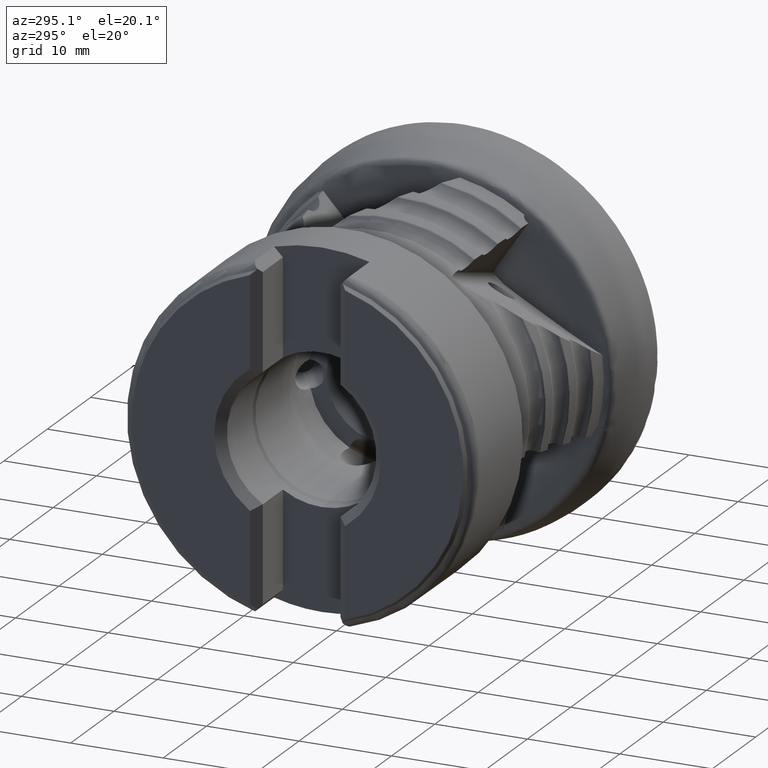
[diagram: clean part render]
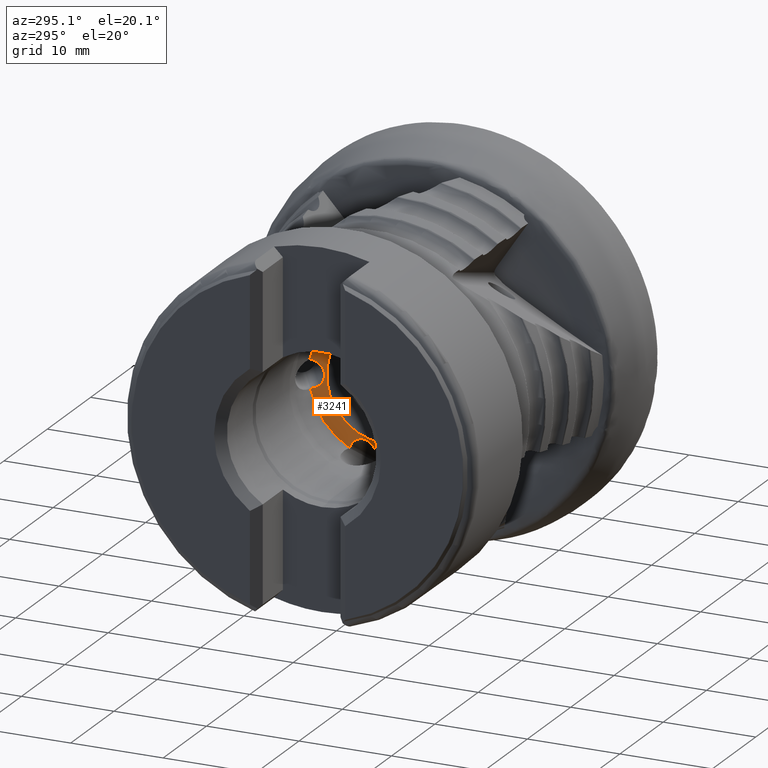
[diagram: same view with one face highlighted and labeled with its STEP entity id]
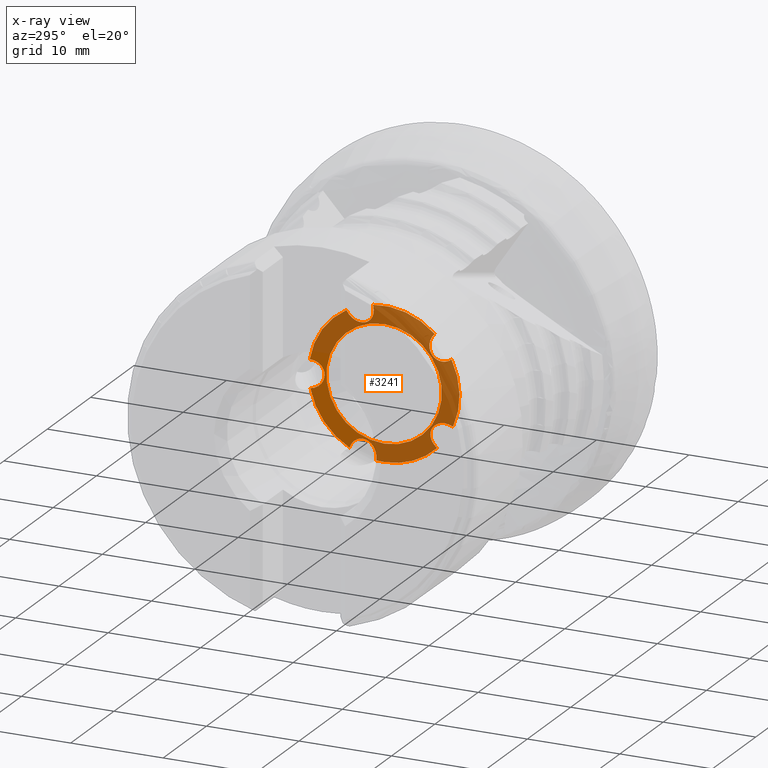
[diagram: x-ray of the same camera — body ghosted, the highlighted face saturated]
A machine part, auxiliary view. The second image highlights one B-rep face of the part: STEP entity #3241.
The next image is the same camera in x-ray: the body ghosted, the highlighted face saturated — about 75% of this face is hidden behind the body in this view.
In plain terms, the highlighted planar face has unit normal (1, 0, -0).
Its self-contained STEP definition (entity closure, byte-faithful):
#352 = CARTESIAN_POINT ( 'NONE',  ( -19.00000000000000000, 0.0000000000000000000, 0.0000000000000000000 ) ) ;
#395 = VERTEX_POINT ( 'NONE', #8286 ) ;
#417 = FACE_OUTER_BOUND ( 'NONE', #4820, .T. ) ;
#427 = DIRECTION ( 'NONE',  ( 1.000000000000000000, -0.0000000000000000000, -0.0000000000000000000 ) ) ;
#543 =( BOUNDED_CURVE ( )  B_SPLINE_CURVE ( 3, ( #5584, #2654, #1201, #3258 ),
 .UNSPECIFIED., .F., .F. ) 
 B_SPLINE_CURVE_WITH_KNOTS ( ( 4, 4 ),
 ( 4.541438790713554500, 7.518113631060419500 ),
 .UNSPECIFIED. ) 
 CURVE ( )  GEOMETRIC_REPRESENTATION_ITEM ( )  RATIONAL_B_SPLINE_CURVE ( ( 1.000000000000000000, 0.3882436614828691500, 0.3882436614828691500, 1.000000000000000000 ) ) 
 REPRESENTATION_ITEM ( '' )  );
#685 = CARTESIAN_POINT ( 'NONE',  ( -19.00000000000000000, 8.042195829869292800, 1.321206355582983600 ) ) ;
#694 = ORIENTED_EDGE ( 'NONE', *, *, #6602, .T. ) ;
#766 = AXIS2_PLACEMENT_3D ( 'NONE', #4334, #2749, #2711 ) ;
#918 = DIRECTION ( 'NONE',  ( 0.0000000000000000000, 0.0000000000000000000, -1.000000000000000000 ) ) ;
#981 = CARTESIAN_POINT ( 'NONE',  ( -19.00000000000000000, 0.0000000000000000000, -6.232050807568852800 ) ) ;
#1201 = CARTESIAN_POINT ( 'NONE',  ( -19.00000000000000000, 5.119280253755688300, 1.381342129187945500 ) ) ;
#1395 = ORIENTED_EDGE ( 'NONE', *, *, #2384, .F. ) ;
#1882 = AXIS2_PLACEMENT_3D ( 'NONE', #2454, #2423, #2379 ) ;
#1979 = VERTEX_POINT ( 'NONE', #3248 ) ;
#2133 = VERTEX_POINT ( 'NONE', #7236 ) ;
#2289 = CARTESIAN_POINT ( 'NONE',  ( -19.00000000000000000, 1.228633269672830400, 8.056857966270287700 ) ) ;
#2316 = CARTESIAN_POINT ( 'NONE',  ( -19.00000000000000000, 0.2682101641814125800, 5.295583037040607600 ) ) ;
#2328 = CARTESIAN_POINT ( 'NONE',  ( -19.00000000000000000, 0.0000000000000000000, 0.0000000000000000000 ) ) ;
#2379 = DIRECTION ( 'NONE',  ( 0.0000000000000000000, 0.0000000000000000000, -1.000000000000000000 ) ) ;
#2384 = EDGE_CURVE ( 'NONE', #3889, #6248, #4790, .T. ) ;
#2390 = VERTEX_POINT ( 'NONE', #7599 ) ;
#2423 = DIRECTION ( 'NONE',  ( 1.000000000000000000, -0.0000000000000000000, -0.0000000000000000000 ) ) ;
#2431 = CIRCLE ( 'NONE', #1882, 6.232050807568852800 ) ;
#2432 = CARTESIAN_POINT ( 'NONE',  ( -19.00000000000000000, 2.715380489025496700, 4.436139574919639700 ) ) ;
#2442 = CARTESIAN_POINT ( 'NONE',  ( -18.99999999999996400, 4.078928371242388300, 7.055837536556087900 ) ) ;
#2454 = CARTESIAN_POINT ( 'NONE',  ( -19.00000000000000000, 0.0000000000000000000, 0.0000000000000000000 ) ) ;
#2599 = PLANE ( 'NONE',  #766 ) ;
#2654 = CARTESIAN_POINT ( 'NONE',  ( -19.00000000000000000, 5.058118167225127400, -1.211637790239004800 ) ) ;
#2711 = DIRECTION ( 'NONE',  ( -0.0000000000000000000, 0.0000000000000000000, -1.000000000000000000 ) ) ;
#2749 = DIRECTION ( 'NONE',  ( 1.000000000000000000, 0.0000000000000000000, -0.0000000000000000000 ) ) ;
#2867 = ORIENTED_EDGE ( 'NONE', *, *, #7413, .F. ) ;
#3073 = CIRCLE ( 'NONE', #3965, 8.149999999999996800 ) ;
#3134 = EDGE_CURVE ( 'NONE', #2133, #3555, #6220, .T. ) ;
#3153 = CARTESIAN_POINT ( 'NONE',  ( -18.99999999999993600, -5.450042081509611300, 6.059665115315726600 ) ) ;
#3205 = ORIENTED_EDGE ( 'NONE', *, *, #7664, .F. ) ;
#3241 = ADVANCED_FACE ( 'NONE', ( #9535, #417 ), #2599, .F. ) ;
#3248 = CARTESIAN_POINT ( 'NONE',  ( -18.99999999999996100, -7.447239617732516400, -3.310758534848954800 ) ) ;
#3258 = CARTESIAN_POINT ( 'NONE',  ( -19.00000000000000000, 8.042195829869292800, 1.321206355582983600 ) ) ;
#3354 = ORIENTED_EDGE ( 'NONE', *, *, #5992, .F. ) ;
#3432 =( BOUNDED_CURVE ( )  B_SPLINE_CURVE ( 3, ( #5775, #5902, #5608, #5595 ),
 .UNSPECIFIED., .F., .F. ) 
 B_SPLINE_CURVE_WITH_KNOTS ( ( 4, 4 ),
 ( 4.541438790713552700, 7.518113631060403500 ),
 .UNSPECIFIED. ) 
 CURVE ( )  GEOMETRIC_REPRESENTATION_ITEM ( )  RATIONAL_B_SPLINE_CURVE ( ( 1.000000000000000000, 0.3882436614828739300, 0.3882436614828739300, 1.000000000000000000 ) ) 
 REPRESENTATION_ITEM ( '' )  );
#3555 = VERTEX_POINT ( 'NONE', #3153 ) ;
#3870 = DIRECTION ( 'NONE',  ( 1.000000000000000000, -0.0000000000000000000, -0.0000000000000000000 ) ) ;
#3889 = VERTEX_POINT ( 'NONE', #6825 ) ;
#3945 = EDGE_CURVE ( 'NONE', #6413, #1979, #8772, .T. ) ;
#3965 = AXIS2_PLACEMENT_3D ( 'NONE', #4293, #4290, #4282 ) ;
#4076 = AXIS2_PLACEMENT_3D ( 'NONE', #8039, #8786, #8532 ) ;
#4160 = DIRECTION ( 'NONE',  ( 0.0000000000000000000, 0.0000000000000000000, -1.000000000000000000 ) ) ;
#4282 = DIRECTION ( 'NONE',  ( 0.0000000000000000000, 0.0000000000000000000, -1.000000000000000000 ) ) ;
#4290 = DIRECTION ( 'NONE',  ( 1.000000000000000000, -0.0000000000000000000, -0.0000000000000000000 ) ) ;
#4293 = CARTESIAN_POINT ( 'NONE',  ( -19.00000000000000000, 0.0000000000000000000, 0.0000000000000000000 ) ) ;
#4334 = CARTESIAN_POINT ( 'NONE',  ( -19.00000000000000000, 6.232050807568852800, 0.0000000000000000000 ) ) ;
#4743 = EDGE_LOOP ( 'NONE', ( #694 ) ) ;
#4788 = ORIENTED_EDGE ( 'NONE', *, *, #5829, .F. ) ;
#4790 = CIRCLE ( 'NONE', #5945, 8.149999999999996800 ) ;
#4820 = EDGE_LOOP ( 'NONE', ( #3205, #7382, #2867, #6770, #5686, #7153, #3354, #1395, #8812, #4788 ) ) ;
#5389 = VERTEX_POINT ( 'NONE', #685 ) ;
#5584 = CARTESIAN_POINT ( 'NONE',  ( -18.99999999999998900, 7.970958452613630600, -1.698917698626769100 ) ) ;
#5595 = CARTESIAN_POINT ( 'NONE',  ( -19.00000000000000000, -5.729687487408540400, -5.795962499588307900 ) ) ;
#5608 = CARTESIAN_POINT ( 'NONE',  ( -19.00000000000000000, -3.329652192349482800, -4.126566693068785900 ) ) ;
#5686 = ORIENTED_EDGE ( 'NONE', *, *, #8117, .F. ) ;
#5775 = CARTESIAN_POINT ( 'NONE',  ( -18.99999999999996100, -7.447239617732516400, -3.310758534848954800 ) ) ;
#5829 = EDGE_CURVE ( 'NONE', #395, #8799, #8239, .T. ) ;
#5902 = CARTESIAN_POINT ( 'NONE',  ( -19.00000000000000000, -4.804286381064537500, -1.992851699717354200 ) ) ;
#5945 = AXIS2_PLACEMENT_3D ( 'NONE', #352, #427, #918 ) ;
#5970 = CARTESIAN_POINT ( 'NONE',  ( -19.00000000000000000, -7.282858709502659300, 3.658205710101771800 ) ) ;
#5992 = EDGE_CURVE ( 'NONE', #6248, #5389, #543, .T. ) ;
#6220 = CIRCLE ( 'NONE', #4076, 8.149999999999996800 ) ;
#6248 = VERTEX_POINT ( 'NONE', #8527 ) ;
#6259 = EDGE_CURVE ( 'NONE', #8799, #3889, #6398, .T. ) ;
#6398 =( BOUNDED_CURVE ( )  B_SPLINE_CURVE ( 3, ( #8352, #8289, #8229, #8197 ),
 .UNSPECIFIED., .F., .F. ) 
 B_SPLINE_CURVE_WITH_KNOTS ( ( 4, 4 ),
 ( 4.541438790713558000, 7.518113631060423100 ),
 .UNSPECIFIED. ) 
 CURVE ( )  GEOMETRIC_REPRESENTATION_ITEM ( )  RATIONAL_B_SPLINE_CURVE ( ( 1.000000000000000000, 0.3882436614828691500, 0.3882436614828691500, 1.000000000000000000 ) ) 
 REPRESENTATION_ITEM ( '' )  );
#6413 = VERTEX_POINT ( 'NONE', #5970 ) ;
#6602 = EDGE_CURVE ( 'NONE', #8413, #8413, #2431, .T. ) ;
#6626 = AXIS2_PLACEMENT_3D ( 'NONE', #7982, #7950, #7895 ) ;
#6668 = CARTESIAN_POINT ( 'NONE',  ( -19.00000000000000000, -7.282858709502659300, 3.658205710101771800 ) ) ;
#6681 = CARTESIAN_POINT ( 'NONE',  ( -19.00000000000000000, -4.953517256163386200, 1.891508177950590000 ) ) ;
#6691 = CARTESIAN_POINT ( 'NONE',  ( -18.99999999999993600, -5.450042081509611300, 6.059665115315726600 ) ) ;
#6734 = CARTESIAN_POINT ( 'NONE',  ( -19.00000000000000000, -3.379920732619133600, 3.953322826377861700 ) ) ;
#6770 = ORIENTED_EDGE ( 'NONE', *, *, #3134, .F. ) ;
#6825 = CARTESIAN_POINT ( 'NONE',  ( -19.00000000000000000, 3.741717097368690400, -7.240307532367584300 ) ) ;
#7153 = ORIENTED_EDGE ( 'NONE', *, *, #7833, .F. ) ;
#7236 = CARTESIAN_POINT ( 'NONE',  ( -19.00000000000000000, 1.228633269672830400, 8.056857966270287700 ) ) ;
#7382 = ORIENTED_EDGE ( 'NONE', *, *, #3945, .F. ) ;
#7413 = EDGE_CURVE ( 'NONE', #3555, #6413, #7738, .T. ) ;
#7525 =( BOUNDED_CURVE ( )  B_SPLINE_CURVE ( 3, ( #2442, #2432, #2316, #2289 ),
 .UNSPECIFIED., .F., .F. ) 
 B_SPLINE_CURVE_WITH_KNOTS ( ( 4, 4 ),
 ( 4.541438790713554500, 7.518113631060403500 ),
 .UNSPECIFIED. ) 
 CURVE ( )  GEOMETRIC_REPRESENTATION_ITEM ( )  RATIONAL_B_SPLINE_CURVE ( ( 1.000000000000000000, 0.3882436614828744800, 0.3882436614828744800, 1.000000000000000000 ) ) 
 REPRESENTATION_ITEM ( '' )  );
#7599 = CARTESIAN_POINT ( 'NONE',  ( -18.99999999999996400, 4.078928371242388300, 7.055837536556087900 ) ) ;
#7664 = EDGE_CURVE ( 'NONE', #1979, #395, #3432, .T. ) ;
#7738 =( BOUNDED_CURVE ( )  B_SPLINE_CURVE ( 3, ( #6691, #6734, #6681, #6668 ),
 .UNSPECIFIED., .F., .F. ) 
 B_SPLINE_CURVE_WITH_KNOTS ( ( 4, 4 ),
 ( 4.541438790713552700, 7.518113631060389300 ),
 .UNSPECIFIED. ) 
 CURVE ( )  GEOMETRIC_REPRESENTATION_ITEM ( )  RATIONAL_B_SPLINE_CURVE ( ( 1.000000000000000000, 0.3882436614828786400, 0.3882436614828786400, 1.000000000000000000 ) ) 
 REPRESENTATION_ITEM ( '' )  );
#7833 = EDGE_CURVE ( 'NONE', #5389, #2390, #3073, .T. ) ;
#7895 = DIRECTION ( 'NONE',  ( 0.0000000000000000000, 0.0000000000000000000, -1.000000000000000000 ) ) ;
#7950 = DIRECTION ( 'NONE',  ( 1.000000000000000000, -0.0000000000000000000, -0.0000000000000000000 ) ) ;
#7982 = CARTESIAN_POINT ( 'NONE',  ( -19.00000000000000000, 0.0000000000000000000, 0.0000000000000000000 ) ) ;
#8039 = CARTESIAN_POINT ( 'NONE',  ( -19.00000000000000000, 0.0000000000000000000, 0.0000000000000000000 ) ) ;
#8117 = EDGE_CURVE ( 'NONE', #2390, #2133, #7525, .T. ) ;
#8197 = CARTESIAN_POINT ( 'NONE',  ( -19.00000000000000000, 3.741717097368690400, -7.240307532367584300 ) ) ;
#8229 = CARTESIAN_POINT ( 'NONE',  ( -19.00000000000000000, 2.895679030575816400, -4.441866651110310600 ) ) ;
#8239 = CIRCLE ( 'NONE', #6626, 8.149999999999996800 ) ;
#8286 = CARTESIAN_POINT ( 'NONE',  ( -19.00000000000000000, -5.729687487408540400, -5.795962499588307900 ) ) ;
#8289 = CARTESIAN_POINT ( 'NONE',  ( -19.00000000000000000, 0.4107084574329539200, -5.184972911341104100 ) ) ;
#8352 = CARTESIAN_POINT ( 'NONE',  ( -19.00000000000000000, 0.8473948753859500400, -8.105826418396189200 ) ) ;
#8413 = VERTEX_POINT ( 'NONE', #981 ) ;
#8527 = CARTESIAN_POINT ( 'NONE',  ( -18.99999999999998900, 7.970958452613630600, -1.698917698626769100 ) ) ;
#8532 = DIRECTION ( 'NONE',  ( 0.0000000000000000000, 0.0000000000000000000, -1.000000000000000000 ) ) ;
#8612 = CARTESIAN_POINT ( 'NONE',  ( -19.00000000000000000, 0.8473948753859500400, -8.105826418396189200 ) ) ;
#8772 = CIRCLE ( 'NONE', #8839, 8.149999999999996800 ) ;
#8786 = DIRECTION ( 'NONE',  ( 1.000000000000000000, -0.0000000000000000000, -0.0000000000000000000 ) ) ;
#8799 = VERTEX_POINT ( 'NONE', #8612 ) ;
#8812 = ORIENTED_EDGE ( 'NONE', *, *, #6259, .F. ) ;
#8839 = AXIS2_PLACEMENT_3D ( 'NONE', #2328, #3870, #4160 ) ;
#9535 = FACE_BOUND ( 'NONE', #4743, .T. ) ;